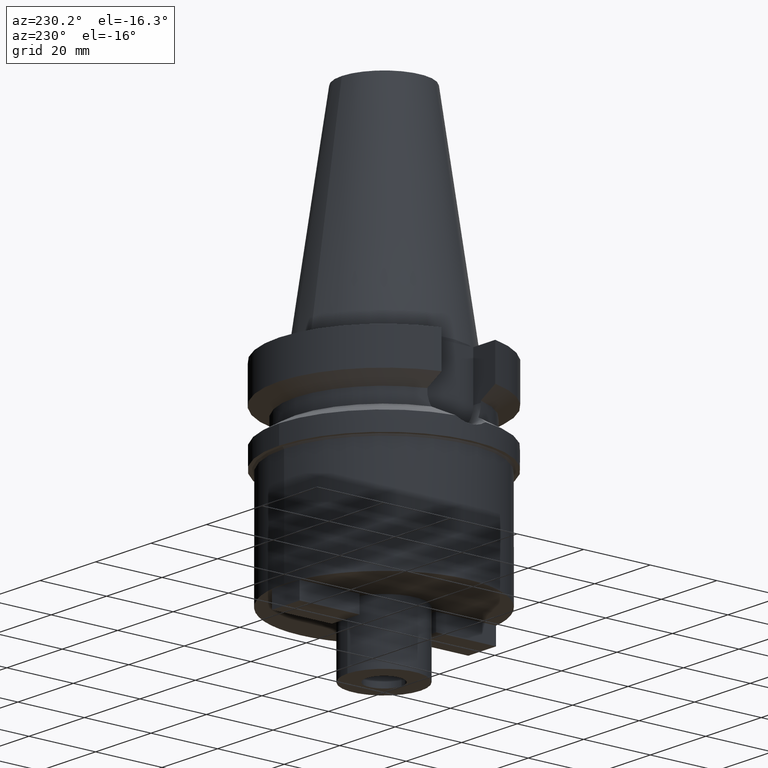
[diagram: clean part render]
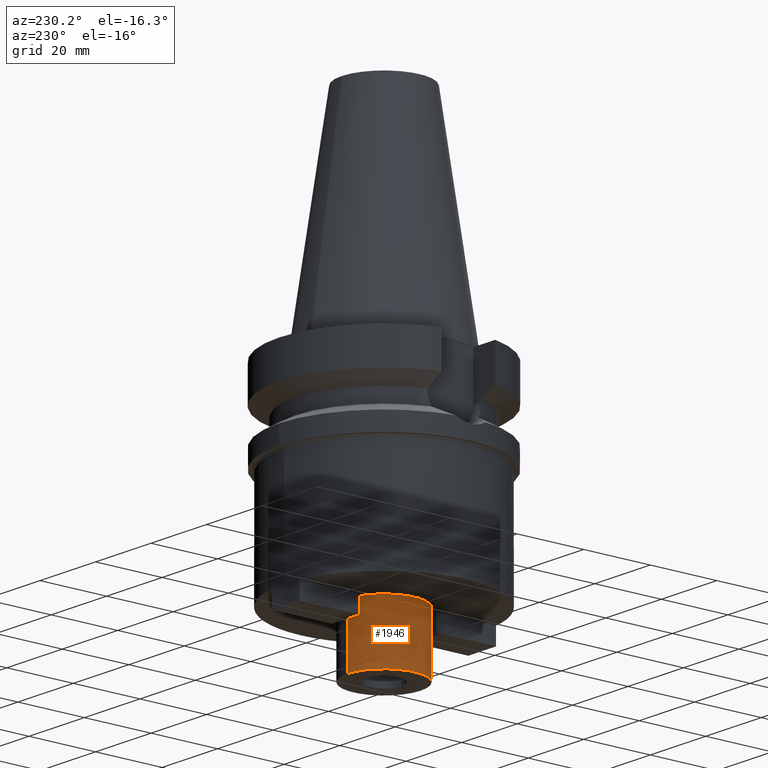
[diagram: same view with one face highlighted and labeled with its STEP entity id]
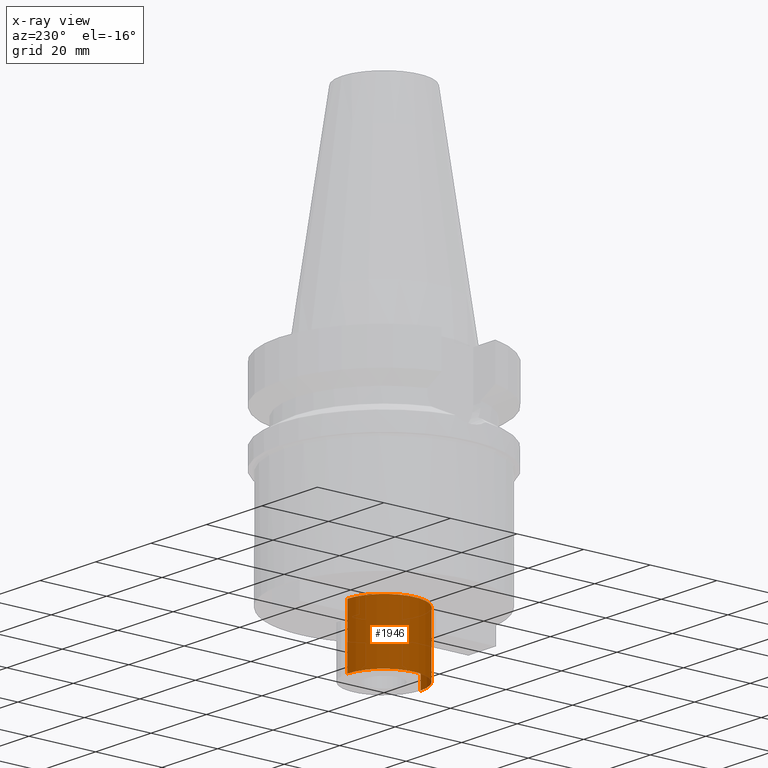
[diagram: x-ray of the same camera — body ghosted, the highlighted face saturated]
A machine part, auxiliary view. The second image highlights one B-rep face of the part: STEP entity #1946.
The next image is the same camera in x-ray: the body ghosted, the highlighted face saturated — about 0% of this face is hidden behind the body in this view.
In plain terms, the highlighted cylindrical surface (partial cylindrical patch) has radius 11 mm, axis along (0, 0, -1).
Its self-contained STEP definition (entity closure, byte-faithful):
#720=CARTESIAN_POINT('',(0.E0,2.113372981289E-14,-6.E1));
#721=DIRECTION('',(0.E0,0.E0,-1.E0));
#722=DIRECTION('',(0.E0,-1.E0,0.E0));
#723=AXIS2_PLACEMENT_3D('',#720,#721,#722);
#764=DIRECTION('',(0.E0,0.E0,-1.E0));
#765=VECTOR('',#764,1.8E1);
#766=CARTESIAN_POINT('',(0.E0,-1.1E1,-6.E1));
#767=LINE('',#766,#765);
#771=DIRECTION('',(0.E0,0.E0,-1.E0));
#772=VECTOR('',#771,1.8E1);
#773=CARTESIAN_POINT('',(0.E0,1.1E1,-6.E1));
#774=LINE('',#773,#772);
#786=CARTESIAN_POINT('',(0.E0,2.113372981289E-14,-7.8E1));
#787=DIRECTION('',(0.E0,0.E0,1.E0));
#788=DIRECTION('',(0.E0,1.E0,0.E0));
#789=AXIS2_PLACEMENT_3D('',#786,#787,#788);
#1260=CARTESIAN_POINT('',(0.E0,-1.1E1,-7.8E1));
#1261=CARTESIAN_POINT('',(0.E0,1.1E1,-7.8E1));
#1262=VERTEX_POINT('',#1260);
#1263=VERTEX_POINT('',#1261);
#1264=CARTESIAN_POINT('',(0.E0,1.1E1,-6.E1));
#1265=VERTEX_POINT('',#1264);
#1266=CARTESIAN_POINT('',(0.E0,-1.1E1,-6.E1));
#1267=VERTEX_POINT('',#1266);
#1932=CARTESIAN_POINT('',(0.E0,2.113372981289E-14,7.257E1));
#1933=DIRECTION('',(0.E0,0.E0,-1.E0));
#1934=DIRECTION('',(0.E0,-1.E0,0.E0));
#1935=AXIS2_PLACEMENT_3D('',#1932,#1933,#1934);
#1936=CYLINDRICAL_SURFACE('',#1935,1.1E1);
#1938=ORIENTED_EDGE('',*,*,#1937,.F.);
#1939=ORIENTED_EDGE('',*,*,#1905,.F.);
#1941=ORIENTED_EDGE('',*,*,#1940,.T.);
#1943=ORIENTED_EDGE('',*,*,#1942,.F.);
#1944=EDGE_LOOP('',(#1938,#1939,#1941,#1943));
#1945=FACE_OUTER_BOUND('',#1944,.F.);
#724=CIRCLE('',#723,1.1E1);
#790=CIRCLE('',#789,1.1E1);
#1905=EDGE_CURVE('',#1267,#1265,#724,.T.);
#1937=EDGE_CURVE('',#1265,#1263,#774,.T.);
#1940=EDGE_CURVE('',#1267,#1262,#767,.T.);
#1942=EDGE_CURVE('',#1263,#1262,#790,.T.);
#1946=ADVANCED_FACE('',(#1945),#1936,.T.);